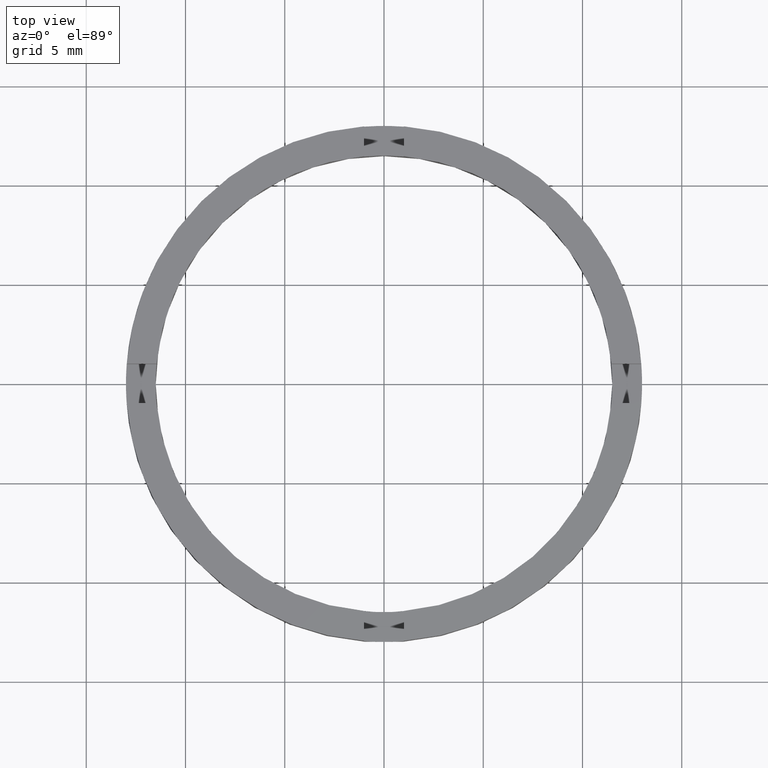
[diagram: clean part render]
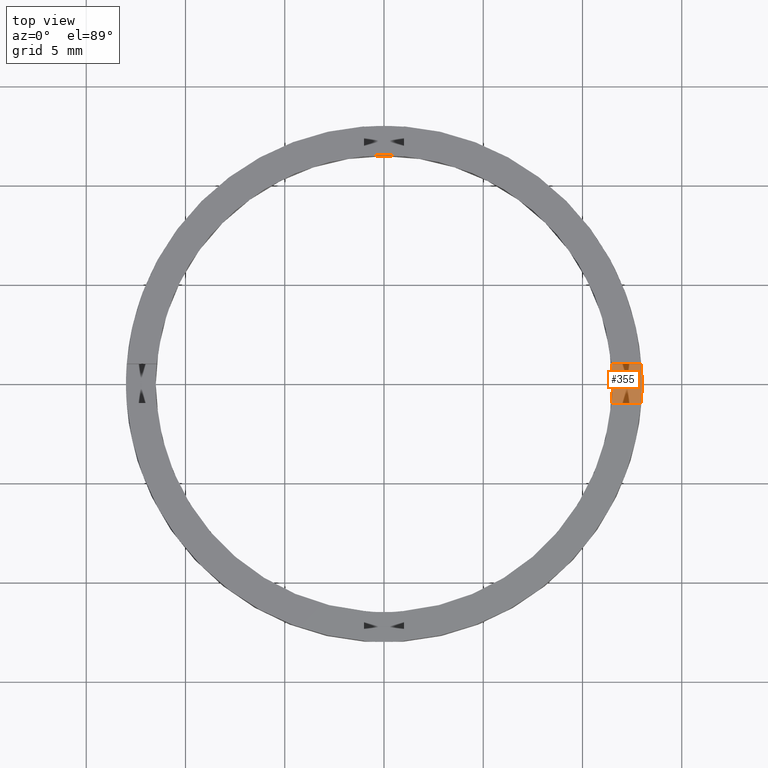
[diagram: same view with one face highlighted and labeled with its STEP entity id]
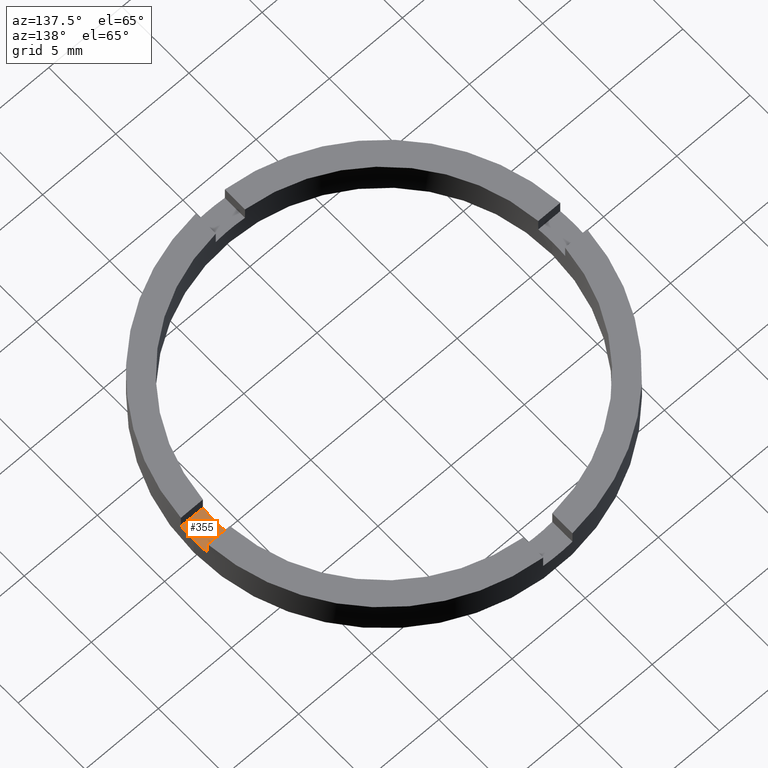
[diagram: same view with one face highlighted and labeled with its STEP entity id]
A machine part, top view. The second image highlights one B-rep face of the part: STEP entity #355.
A second angle (auxiliary view) of the same face is appended — the face is thin or edge-on in the first view.
In plain terms, the highlighted planar face has unit normal (0, 0, 1).
Its self-contained STEP definition (entity closure, byte-faithful):
#14 = CIRCLE ( 'NONE', #321, 11.50000000000000000 ) ;
#28 = LINE ( 'NONE', #639, #557 ) ;
#29 = CARTESIAN_POINT ( 'NONE',  ( 11.50000000000000000, 1.408343819019456176E-15, 1.500000000000000000 ) ) ;
#30 = CIRCLE ( 'NONE', #567, 12.99999999999999822 ) ;
#42 = AXIS2_PLACEMENT_3D ( 'NONE', #749, #386, #460 ) ;
#46 = CIRCLE ( 'NONE', #746, 11.50000000000000000 ) ;
#79 = DIRECTION ( 'NONE',  ( 1.000000000000000000, 0.000000000000000000, 0.000000000000000000 ) ) ;
#81 = DIRECTION ( 'NONE',  ( 0.000000000000000000, 0.000000000000000000, 1.000000000000000000 ) ) ;
#89 = CARTESIAN_POINT ( 'NONE',  ( 0.000000000000000000, 0.000000000000000000, 1.500000000000000000 ) ) ;
#100 = ORIENTED_EDGE ( 'NONE', *, *, #240, .T. ) ;
#102 = CARTESIAN_POINT ( 'NONE',  ( 0.000000000000000000, 0.000000000000000000, 1.500000000000000000 ) ) ;
#128 = ORIENTED_EDGE ( 'NONE', *, *, #719, .T. ) ;
#147 = VERTEX_POINT ( 'NONE', #620 ) ;
#149 = CARTESIAN_POINT ( 'NONE',  ( 0.000000000000000000, 0.000000000000000000, 1.500000000000000000 ) ) ;
#151 = VERTEX_POINT ( 'NONE', #387 ) ;
#182 = DIRECTION ( 'NONE',  ( 0.000000000000000000, 0.000000000000000000, 1.000000000000000000 ) ) ;
#188 = EDGE_LOOP ( 'NONE', ( #377, #345, #128, #435, #487, #100 ) ) ;
#216 = DIRECTION ( 'NONE',  ( 0.000000000000000000, 0.000000000000000000, 1.000000000000000000 ) ) ;
#240 = EDGE_CURVE ( 'NONE', #721, #147, #503, .T. ) ;
#244 = AXIS2_PLACEMENT_3D ( 'NONE', #149, #216, #287 ) ;
#276 = VECTOR ( 'NONE', #528, 1000.000000000000000 ) ;
#280 = CIRCLE ( 'NONE', #244, 12.99999999999999822 ) ;
#287 = DIRECTION ( 'NONE',  ( 1.000000000000000000, 0.000000000000000000, 0.000000000000000000 ) ) ;
#288 = CARTESIAN_POINT ( 'NONE',  ( 2.999999999999992450, -1.000000000000160316, 1.500000000000000000 ) ) ;
#293 = EDGE_CURVE ( 'NONE', #721, #461, #14, .T. ) ;
#294 = EDGE_CURVE ( 'NONE', #147, #445, #280, .T. ) ;
#304 = DIRECTION ( 'NONE',  ( 0.000000000000000000, 0.000000000000000000, 1.000000000000000000 ) ) ;
#321 = AXIS2_PLACEMENT_3D ( 'NONE', #102, #304, #79 ) ;
#336 = CARTESIAN_POINT ( 'NONE',  ( 11.45643923738958669, -1.000000000000160094, 1.500000000000000000 ) ) ;
#345 = ORIENTED_EDGE ( 'NONE', *, *, #713, .T. ) ;
#355 = ADVANCED_FACE ( 'NONE', ( #538 ), #367, .T. ) ;
#367 = PLANE ( 'NONE',  #42 ) ;
#377 = ORIENTED_EDGE ( 'NONE', *, *, #294, .T. ) ;
#386 = DIRECTION ( 'NONE',  ( 0.000000000000000000, 0.000000000000000000, 1.000000000000000000 ) ) ;
#387 = CARTESIAN_POINT ( 'NONE',  ( 12.96148139681572964, 0.9999999999998402389, 1.500000000000000000 ) ) ;
#389 = CARTESIAN_POINT ( 'NONE',  ( 0.000000000000000000, 0.000000000000000000, 1.500000000000000000 ) ) ;
#435 = ORIENTED_EDGE ( 'NONE', *, *, #617, .F. ) ;
#445 = VERTEX_POINT ( 'NONE', #615 ) ;
#460 = DIRECTION ( 'NONE',  ( 1.000000000000000000, 0.000000000000000000, -0.000000000000000000 ) ) ;
#461 = VERTEX_POINT ( 'NONE', #29 ) ;
#486 = DIRECTION ( 'NONE',  ( 1.000000000000000000, 0.000000000000000000, 0.000000000000000000 ) ) ;
#487 = ORIENTED_EDGE ( 'NONE', *, *, #293, .F. ) ;
#491 = DIRECTION ( 'NONE',  ( -1.000000000000000000, -4.336808689942017120E-17, -0.000000000000000000 ) ) ;
#503 = LINE ( 'NONE', #288, #276 ) ;
#528 = DIRECTION ( 'NONE',  ( 1.000000000000000000, 4.336808689942017120E-17, 0.000000000000000000 ) ) ;
#538 = FACE_OUTER_BOUND ( 'NONE', #188, .T. ) ;
#557 = VECTOR ( 'NONE', #491, 1000.000000000000000 ) ;
#567 = AXIS2_PLACEMENT_3D ( 'NONE', #89, #182, #486 ) ;
#584 = DIRECTION ( 'NONE',  ( 1.000000000000000000, 0.000000000000000000, 0.000000000000000000 ) ) ;
#612 = VERTEX_POINT ( 'NONE', #705 ) ;
#615 = CARTESIAN_POINT ( 'NONE',  ( 12.99999999999999822, 1.592040838891558898E-15, 1.500000000000000000 ) ) ;
#617 = EDGE_CURVE ( 'NONE', #461, #612, #46, .T. ) ;
#620 = CARTESIAN_POINT ( 'NONE',  ( 12.96148139681570655, -1.000000000000159872, 1.500000000000000000 ) ) ;
#639 = CARTESIAN_POINT ( 'NONE',  ( 2.999999999999992450, 0.9999999999998397948, 1.500000000000000000 ) ) ;
#705 = CARTESIAN_POINT ( 'NONE',  ( 11.45643923738961334, 0.9999999999998400169, 1.500000000000000000 ) ) ;
#713 = EDGE_CURVE ( 'NONE', #445, #151, #30, .T. ) ;
#719 = EDGE_CURVE ( 'NONE', #151, #612, #28, .T. ) ;
#721 = VERTEX_POINT ( 'NONE', #336 ) ;
#746 = AXIS2_PLACEMENT_3D ( 'NONE', #389, #81, #584 ) ;
#749 = CARTESIAN_POINT ( 'NONE',  ( 0.000000000000000000, 0.000000000000000000, 1.500000000000000000 ) ) ;